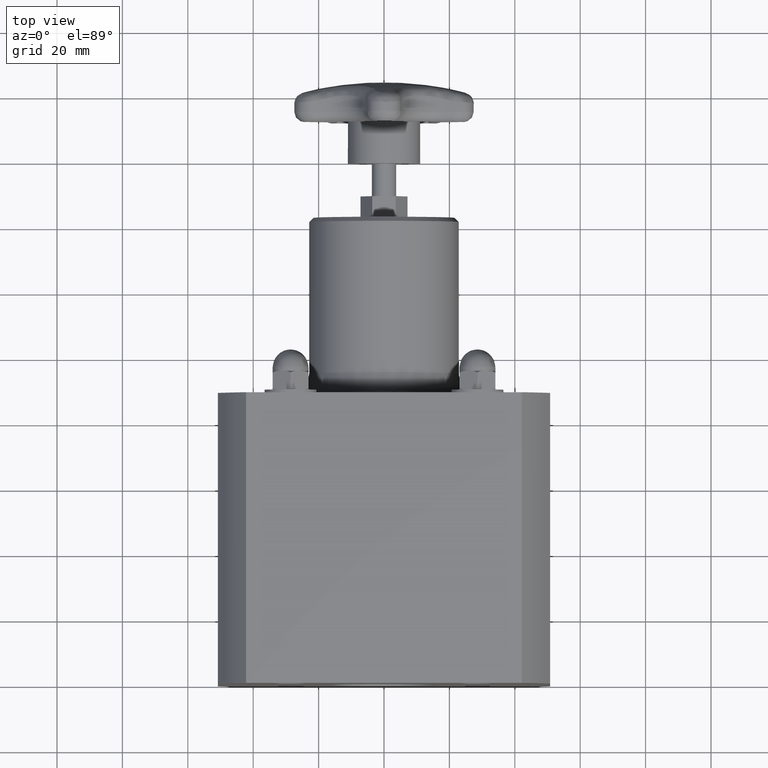
[diagram: clean part render]
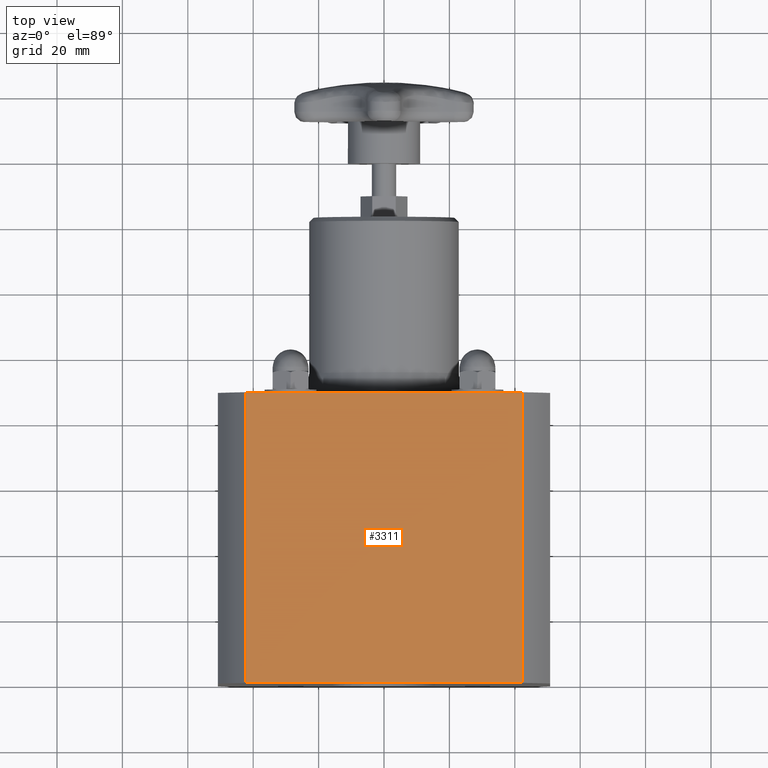
[diagram: same view with one face highlighted and labeled with its STEP entity id]
A machine part, top view. The second image highlights one B-rep face of the part: STEP entity #3311.
In plain terms, the highlighted planar face has unit normal (0, 0, 1).
Its self-contained STEP definition (entity closure, byte-faithful):
#1313=CARTESIAN_POINT('',(-1.660242828624778,3.499999999999999,1.500000000000000));
#1314=VERTEX_POINT('',#1313);
#1322=CARTESIAN_POINT('',(1.660242828624776,3.500000000000001,1.499999999999999));
#1323=VERTEX_POINT('',#1322);
#1324=CARTESIAN_POINT('',(1.660242828624776,3.500000000000002,1.499999999999999));
#1325=DIRECTION('',(-1.0,0.0,0.0));
#1326=VECTOR('',#1325,3.320485657249554);
#1327=LINE('',#1324,#1326);
#1328=EDGE_CURVE('',#1323,#1314,#1327,.T.);
#3155=CARTESIAN_POINT('',(1.660242828624777,3.993419E-016,1.500000000000000));
#3156=VERTEX_POINT('',#3155);
#3157=CARTESIAN_POINT('',(1.660242828624777,3.993419E-016,1.500000000000000));
#3158=DIRECTION('',(0.0,1.0,0.0));
#3159=VECTOR('',#3158,3.500000000000001);
#3160=LINE('',#3157,#3159);
#3161=EDGE_CURVE('',#3156,#1323,#3160,.T.);
#3276=CARTESIAN_POINT('',(-1.660242828624776,-1.259574E-015,1.500000000000000));
#3277=VERTEX_POINT('',#3276);
#3285=CARTESIAN_POINT('',(-1.660242828624776,-1.259574E-015,1.500000000000000));
#3286=DIRECTION('',(0.0,1.0,0.0));
#3287=VECTOR('',#3286,3.500000000000000);
#3288=LINE('',#3285,#3287);
#3289=EDGE_CURVE('',#3277,#1314,#3288,.T.);
#3295=CARTESIAN_POINT('',(1.660242828624777,3.993419E-016,1.500000000000000));
#3296=DIRECTION('',(0.0,0.0,1.0));
#3297=DIRECTION('',(1.0,0.0,0.0));
#3298=AXIS2_PLACEMENT_3D('',#3295,#3296,#3297);
#3299=PLANE('',#3298);
#3300=ORIENTED_EDGE('',*,*,#3289,.F.);
#3301=CARTESIAN_POINT('',(-1.660242828624776,-1.259574E-015,1.500000000000000));
#3302=DIRECTION('',(1.0,0.0,0.0));
#3303=VECTOR('',#3302,3.320485657249553);
#3304=LINE('',#3301,#3303);
#3305=EDGE_CURVE('',#3277,#3156,#3304,.T.);
#3306=ORIENTED_EDGE('',*,*,#3305,.T.);
#3307=ORIENTED_EDGE('',*,*,#3161,.T.);
#3308=ORIENTED_EDGE('',*,*,#1328,.T.);
#3309=EDGE_LOOP('',(#3300,#3306,#3307,#3308));
#3310=FACE_OUTER_BOUND('',#3309,.T.);
#3311=ADVANCED_FACE('',(#3310),#3299,.T.);